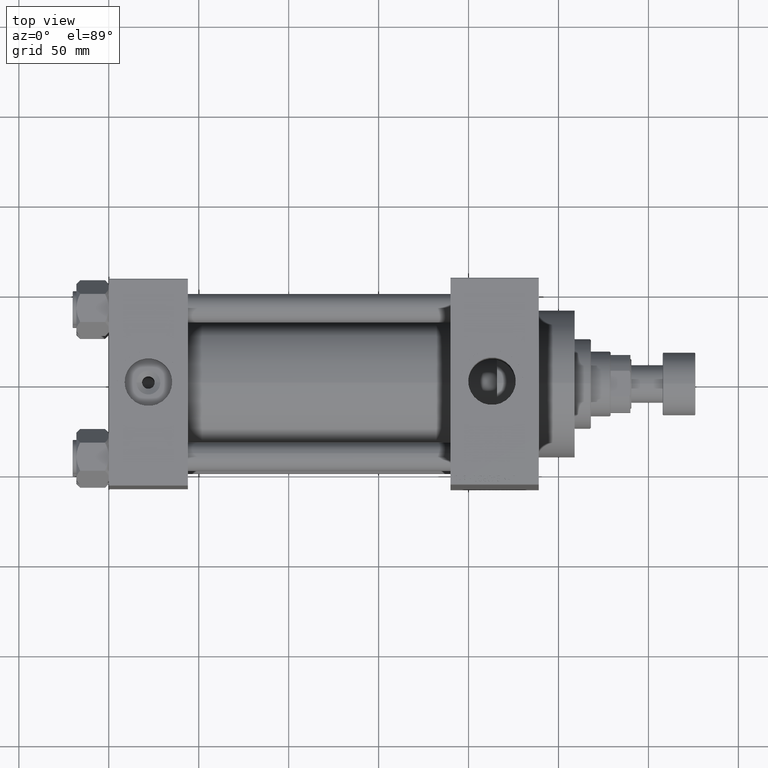
[diagram: clean part render]
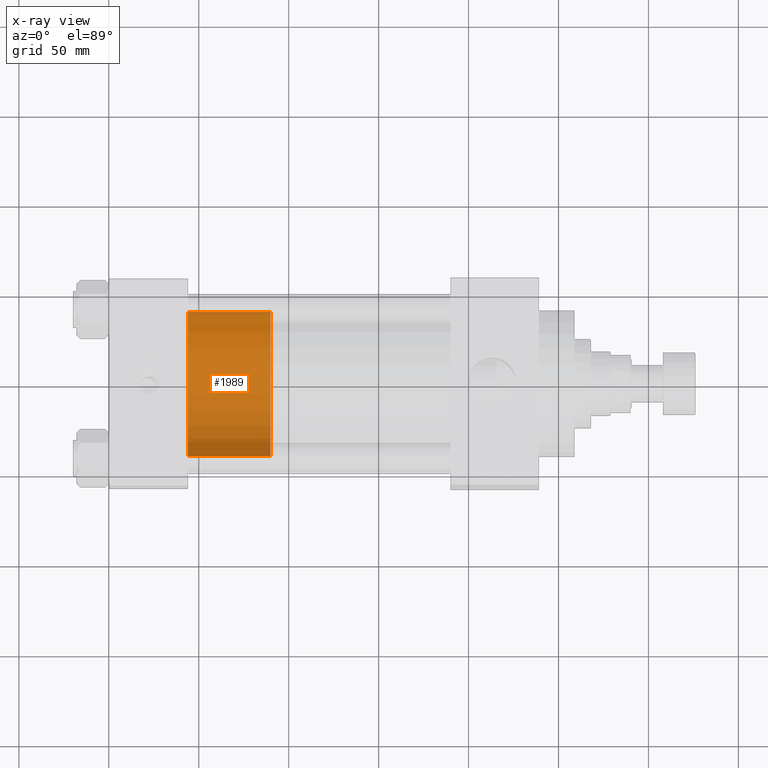
[diagram: x-ray — body ghosted, one internal face saturated and labeled with its STEP entity id]
A machine part, top view, then the same camera in x-ray: the body is ghosted and one INTERNAL B-rep face — a face not visible from any outside direction — is saturated and labeled: STEP entity #1989.
In plain terms, the highlighted cylindrical surface (partial cylindrical patch) has radius 40 mm, axis along (-1, 0, 0).
Its self-contained STEP definition (entity closure, byte-faithful):
#1163 = DIRECTION ( 'NONE',  ( -0.000000000000000000, -0.000000000000000000, -1.000000000000000000 ) ) ;
#1989 = ADVANCED_FACE ( 'NONE', ( #45080 ), #7919, .T. ) ;
#2731 = CIRCLE ( 'NONE', #37089, 40.00000000000000000 ) ;
#4848 = VECTOR ( 'NONE', #5532, 1000.000000000000000 ) ;
#4971 = CARTESIAN_POINT ( 'NONE',  ( 0.000000000000000000, 0.000000000000000000, 46.00000000000000000 ) ) ;
#5532 = DIRECTION ( 'NONE',  ( -0.000000000000000000, -0.000000000000000000, -1.000000000000000000 ) ) ;
#5780 = CARTESIAN_POINT ( 'NONE',  ( 40.00000000000000000, 4.898587196589413026E-15, 46.00000000000000000 ) ) ;
#6784 = CARTESIAN_POINT ( 'NONE',  ( -40.00000000000000000, 0.000000000000000000, 0.000000000000000000 ) ) ;
#7919 = CYLINDRICAL_SURFACE ( 'NONE', #16395, 40.00000000000000000 ) ;
#8635 = DIRECTION ( 'NONE',  ( -1.000000000000000000, 0.000000000000000000, 0.000000000000000000 ) ) ;
#9040 = EDGE_CURVE ( 'NONE', #21171, #26569, #17049, .T. ) ;
#9199 = CARTESIAN_POINT ( 'NONE',  ( -40.00000000000000000, 0.000000000000000000, 46.00000000000000000 ) ) ;
#9705 = CARTESIAN_POINT ( 'NONE',  ( 0.000000000000000000, 0.000000000000000000, 0.000000000000000000 ) ) ;
#10326 = CARTESIAN_POINT ( 'NONE',  ( -40.00000000000000000, 0.000000000000000000, 46.00000000000000000 ) ) ;
#10608 = ORIENTED_EDGE ( 'NONE', *, *, #9040, .T. ) ;
#14242 = VERTEX_POINT ( 'NONE', #6784 ) ;
#16333 = LINE ( 'NONE', #9199, #4848 ) ;
#16395 = AXIS2_PLACEMENT_3D ( 'NONE', #4971, #30924, #8635 ) ;
#16778 = ORIENTED_EDGE ( 'NONE', *, *, #35246, .T. ) ;
#17049 = LINE ( 'NONE', #5780, #47007 ) ;
#18451 = CIRCLE ( 'NONE', #39521, 40.00000000000000000 ) ;
#18782 = DIRECTION ( 'NONE',  ( 0.000000000000000000, 0.000000000000000000, 1.000000000000000000 ) ) ;
#20506 = ORIENTED_EDGE ( 'NONE', *, *, #41770, .F. ) ;
#21171 = VERTEX_POINT ( 'NONE', #31477 ) ;
#26123 = DIRECTION ( 'NONE',  ( 1.000000000000000000, 0.000000000000000000, 0.000000000000000000 ) ) ;
#26569 = VERTEX_POINT ( 'NONE', #44162 ) ;
#30924 = DIRECTION ( 'NONE',  ( -0.000000000000000000, -0.000000000000000000, -1.000000000000000000 ) ) ;
#31477 = CARTESIAN_POINT ( 'NONE',  ( 40.00000000000000000, 4.898587196589413026E-15, 46.00000000000000000 ) ) ;
#32208 = DIRECTION ( 'NONE',  ( 1.000000000000000000, 0.000000000000000000, 0.000000000000000000 ) ) ;
#33452 = EDGE_LOOP ( 'NONE', ( #42781, #10608, #16778, #20506 ) ) ;
#35246 = EDGE_CURVE ( 'NONE', #26569, #14242, #18451, .T. ) ;
#37089 = AXIS2_PLACEMENT_3D ( 'NONE', #37134, #18782, #26123 ) ;
#37134 = CARTESIAN_POINT ( 'NONE',  ( 0.000000000000000000, 0.000000000000000000, 46.00000000000000000 ) ) ;
#39521 = AXIS2_PLACEMENT_3D ( 'NONE', #9705, #47099, #32208 ) ;
#39662 = VERTEX_POINT ( 'NONE', #10326 ) ;
#41770 = EDGE_CURVE ( 'NONE', #39662, #14242, #16333, .T. ) ;
#42781 = ORIENTED_EDGE ( 'NONE', *, *, #47271, .F. ) ;
#44162 = CARTESIAN_POINT ( 'NONE',  ( 40.00000000000000000, 4.898587196589413026E-15, 0.000000000000000000 ) ) ;
#45080 = FACE_OUTER_BOUND ( 'NONE', #33452, .T. ) ;
#47007 = VECTOR ( 'NONE', #1163, 1000.000000000000000 ) ;
#47099 = DIRECTION ( 'NONE',  ( 0.000000000000000000, 0.000000000000000000, 1.000000000000000000 ) ) ;
#47271 = EDGE_CURVE ( 'NONE', #21171, #39662, #2731, .T. ) ;